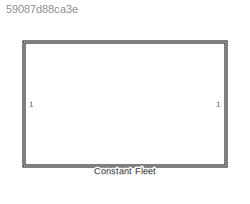
MODEL slx_59087d88ca3e
KIND model
CONFIG AbsTol = auto
CONFIG EnableMultiTasking = off
CONFIG FixedStep = auto
CONFIG MaxStep = auto
CONFIG MinStep = auto
CONFIG RelTol = 1e-3
CONFIG SampleTimeConstraint = Unconstrained
CONFIG SolverName = VariableStepAuto
CONFIG StartTime = 0.0
CONFIG StopTime = 20
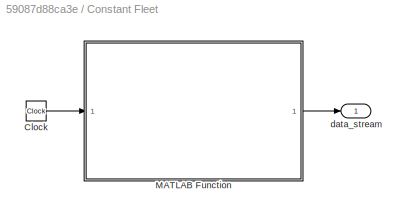
BLOCK [SubSystem] Constant Fleet
  AncestorBlock = VACLib/Vehicle Components/Constant Fleet
  LibrarySourceBlock = VACLib/Vehicle Components/Constant Fleet
BLOCK [Clock] Constant Fleet/Clock
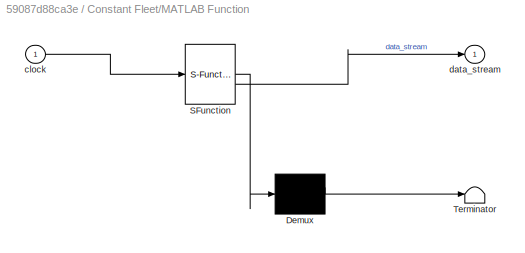
BLOCK [SubSystem] Constant Fleet/MATLAB Function
  ErrorFcn = Stateflow.Translate.translate
  LibrarySourceBlock = simulink/User-Defined\nFunctions/MATLAB Function
  PermitHierarchicalResolution = ExplicitOnly
  SFBlockType = MATLAB Function
  TreatAsAtomicUnit = on
BLOCK [Demux] Constant Fleet/MATLAB Function/ Demux 
  Outputs = 1
BLOCK [S-Function] Constant Fleet/MATLAB Function/ SFunction 
  EnableBusSupport = on
  FunctionName = sf_sfun
  PortCounts = [1 2]
  SFcnIsStateOwnerBlock = off
  SFunctionDeploymentMode = off
  Tag = Stateflow S-Function 2
BLOCK [Terminator] Constant Fleet/MATLAB Function/ Terminator 
BLOCK [Inport] Constant Fleet/MATLAB Function/clock
BLOCK [Outport] Constant Fleet/MATLAB Function/data_stream
BLOCK [Outport] Constant Fleet/data_stream
CHART Constant Fleet/MATLAB Function states=1 transitions=1
  STATE_LABEL 'eML_blk_kernel()'
  STATE_LABEL 'SCRIPT:\nfunction data_stream  = fcn(clock)\n\npersistent out;\npersistent last_tick;\npersistent data_to_send;\n\nmessage_size = 1;\ncar_cache = 1;\nfleet_size = 1000;\nsimulation_time = 10;\n\nif isempty(out)\n    out = 0;\n    data_to_send = (message_size*fleet_size*simulation_time);\n    last_tick = 0;\nend\n\ntick = clock;\npassed_time = tick-last_tick;\nlast_tick = tick;\n\nsend_this_tick = (data_to_send/simulati...<+268ch>'
CHART  states=0 transitions=0
